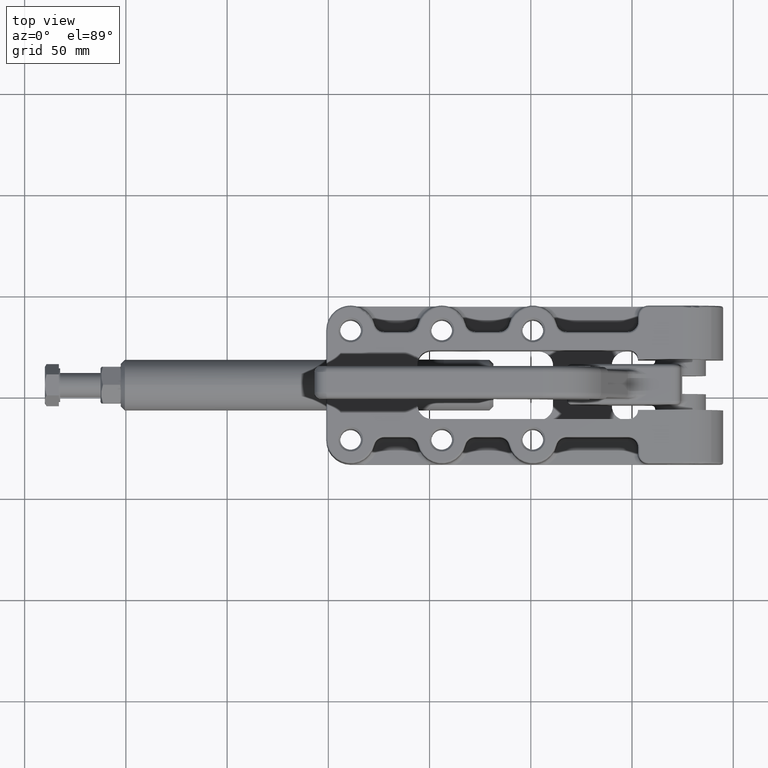
[diagram: clean part render]
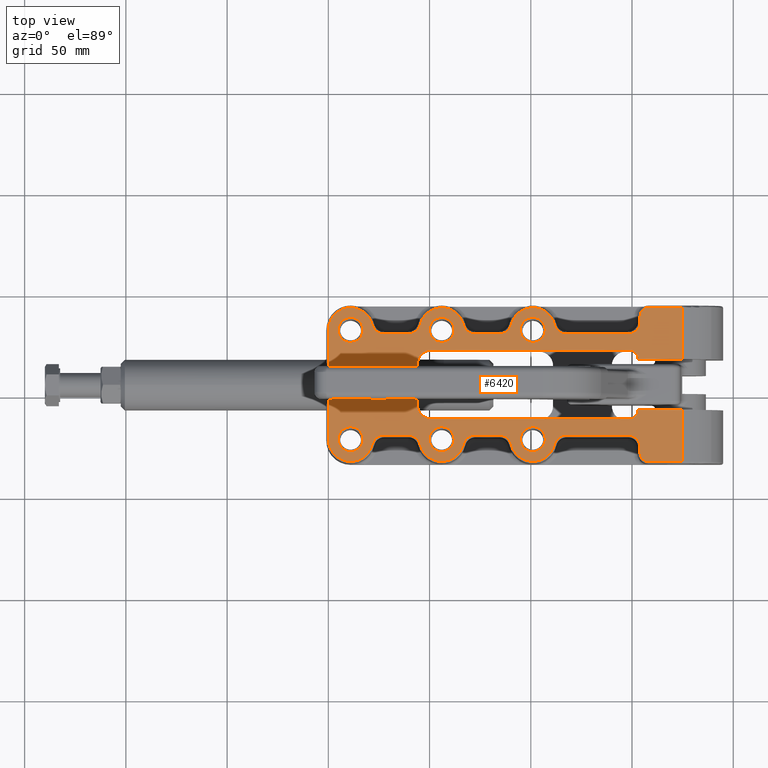
[diagram: same view with one face highlighted and labeled with its STEP entity id]
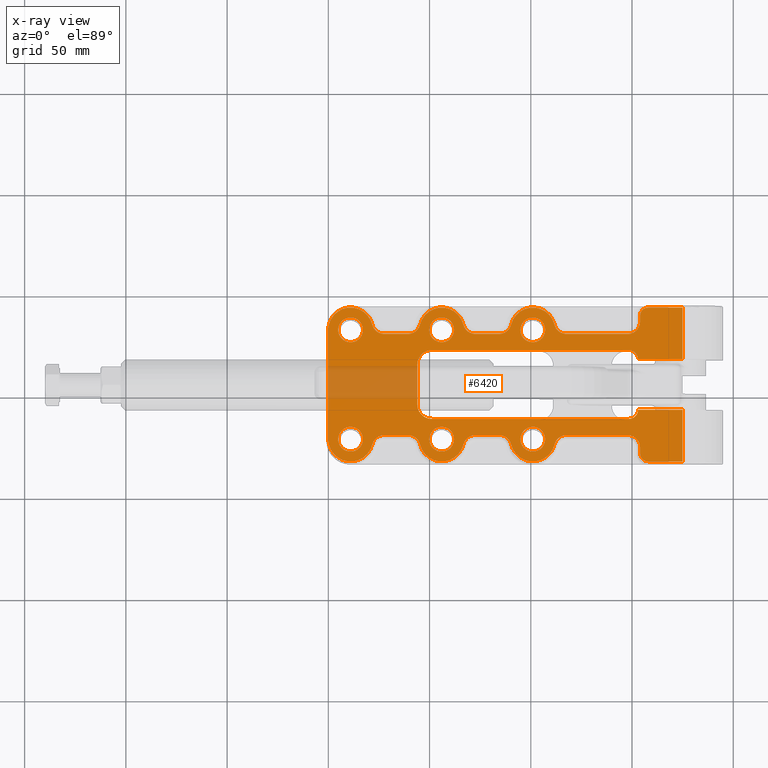
[diagram: x-ray of the same camera — body ghosted, the highlighted face saturated]
A machine part, top view. The second image highlights one B-rep face of the part: STEP entity #6420.
The next image is the same camera in x-ray: the body ghosted, the highlighted face saturated — about 12% of this face is hidden behind the body in this view.
In plain terms, the highlighted planar face has unit normal (0, 0, 1).
Its self-contained STEP definition (entity closure, byte-faithful):
#98=CARTESIAN_POINT('',(174.993680172835580,93.933960241156441,40.0));
#99=VERTEX_POINT('',#98);
#107=CARTESIAN_POINT('',(174.993680172835550,68.433960241156072,40.0));
#108=VERTEX_POINT('',#107);
#109=CARTESIAN_POINT('',(174.993680172835580,93.933960241156441,40.0));
#110=DIRECTION('',(0.0,-1.0,0.0));
#111=VECTOR('',#110,25.500000000000369);
#112=LINE('',#109,#111);
#113=EDGE_CURVE('',#99,#108,#112,.T.);
#564=CARTESIAN_POINT('',(17.143680172835591,82.933960241156171,40.0));
#565=VERTEX_POINT('',#564);
#579=CARTESIAN_POINT('',(4.843680172835589,82.933960241156171,40.0));
#580=VERTEX_POINT('',#579);
#587=CARTESIAN_POINT('',(10.993680172835589,82.933960241156171,40.0));
#588=DIRECTION('',(0.0,0.0,1.0));
#589=DIRECTION('',(1.0,0.0,0.0));
#590=AXIS2_PLACEMENT_3D('',#587,#588,#589);
#591=CIRCLE('',#590,6.150000000000001);
#592=EDGE_CURVE('',#580,#565,#591,.T.);
#640=CARTESIAN_POINT('',(62.150000000000006,82.933960241156171,40.0));
#641=VERTEX_POINT('',#640);
#655=CARTESIAN_POINT('',(49.850000000000009,82.933960241156171,40.0));
#656=VERTEX_POINT('',#655);
#663=CARTESIAN_POINT('',(56.000000000000007,82.933960241156171,40.0));
#664=DIRECTION('',(0.0,0.0,1.0));
#665=DIRECTION('',(1.0,0.0,0.0));
#666=AXIS2_PLACEMENT_3D('',#663,#664,#665);
#667=CIRCLE('',#666,6.149999999999997);
#668=EDGE_CURVE('',#656,#641,#667,.T.);
#716=CARTESIAN_POINT('',(107.150000000000010,82.933960241156171,40.0));
#717=VERTEX_POINT('',#716);
#731=CARTESIAN_POINT('',(94.850000000000009,82.933960241156171,40.0));
#732=VERTEX_POINT('',#731);
#739=CARTESIAN_POINT('',(101.000000000000010,82.933960241156171,40.0));
#740=DIRECTION('',(0.0,0.0,1.0));
#741=DIRECTION('',(1.0,0.0,0.0));
#742=AXIS2_PLACEMENT_3D('',#739,#740,#741);
#743=CIRCLE('',#742,6.149999999999997);
#744=EDGE_CURVE('',#732,#717,#743,.T.);
#756=CARTESIAN_POINT('',(107.150000000000010,28.933960241156029,40.0));
#757=VERTEX_POINT('',#756);
#773=CARTESIAN_POINT('',(94.850000000000009,28.933960241156029,40.0));
#774=VERTEX_POINT('',#773);
#781=CARTESIAN_POINT('',(101.000000000000010,28.933960241156029,40.0));
#782=DIRECTION('',(0.0,0.0,1.0));
#783=DIRECTION('',(1.0,0.0,0.0));
#784=AXIS2_PLACEMENT_3D('',#781,#782,#783);
#785=CIRCLE('',#784,6.149999999999997);
#786=EDGE_CURVE('',#774,#757,#785,.T.);
#798=CARTESIAN_POINT('',(62.150000000000006,28.933960241156029,40.0));
#799=VERTEX_POINT('',#798);
#815=CARTESIAN_POINT('',(49.850000000000009,28.933960241156029,40.0));
#816=VERTEX_POINT('',#815);
#823=CARTESIAN_POINT('',(56.000000000000007,28.933960241156029,40.0));
#824=DIRECTION('',(0.0,0.0,1.0));
#825=DIRECTION('',(1.0,0.0,0.0));
#826=AXIS2_PLACEMENT_3D('',#823,#824,#825);
#827=CIRCLE('',#826,6.149999999999997);
#828=EDGE_CURVE('',#816,#799,#827,.T.);
#840=CARTESIAN_POINT('',(17.143680172835630,28.933960241156029,40.0));
#841=VERTEX_POINT('',#840);
#857=CARTESIAN_POINT('',(4.843680172835626,28.933960241156029,40.0));
#858=VERTEX_POINT('',#857);
#865=CARTESIAN_POINT('',(10.993680172835628,28.933960241156029,40.0));
#866=DIRECTION('',(0.0,0.0,1.0));
#867=DIRECTION('',(1.0,0.0,0.0));
#868=AXIS2_PLACEMENT_3D('',#865,#866,#867);
#869=CIRCLE('',#868,6.150000000000001);
#870=EDGE_CURVE('',#858,#841,#869,.T.);
#1219=CARTESIAN_POINT('',(174.993680172835720,43.433960241154914,40.0));
#1220=VERTEX_POINT('',#1219);
#1228=CARTESIAN_POINT('',(174.993680172835720,17.933960241156054,40.0));
#1229=VERTEX_POINT('',#1228);
#1230=CARTESIAN_POINT('',(174.993680172835720,43.433960241154914,40.0));
#1231=DIRECTION('',(0.0,-1.0,0.0));
#1232=VECTOR('',#1231,25.499999999998860);
#1233=LINE('',#1230,#1232);
#1234=EDGE_CURVE('',#1220,#1229,#1233,.T.);
#1345=CARTESIAN_POINT('',(157.999649923578660,93.933960241156399,40.0));
#1346=VERTEX_POINT('',#1345);
#1354=CARTESIAN_POINT('',(157.999649923578660,93.933960241156399,40.0));
#1355=DIRECTION('',(1.0,0.0,0.0));
#1356=VECTOR('',#1355,16.994030249256923);
#1357=LINE('',#1354,#1356);
#1358=EDGE_CURVE('',#1346,#99,#1357,.T.);
#1602=CARTESIAN_POINT('',(157.999649923578660,17.933960241155894,40.0));
#1603=VERTEX_POINT('',#1602);
#1604=CARTESIAN_POINT('',(174.993680172835720,17.933960241156054,40.0));
#1605=DIRECTION('',(-1.0,0.0,0.0));
#1606=VECTOR('',#1605,16.994030249257065);
#1607=LINE('',#1604,#1606);
#1608=EDGE_CURVE('',#1229,#1603,#1607,.T.);
#1635=CARTESIAN_POINT('',(-0.006319827164361,28.933960241156033,40.0));
#1636=VERTEX_POINT('',#1635);
#1644=CARTESIAN_POINT('',(-0.006319827164370,82.933960241156157,40.0));
#1645=VERTEX_POINT('',#1644);
#1646=CARTESIAN_POINT('',(-0.006319827164361,28.933960241156033,40.0));
#1647=DIRECTION('',(0.0,1.0,0.0));
#1648=VECTOR('',#1647,54.000000000000128);
#1649=LINE('',#1646,#1648);
#1650=EDGE_CURVE('',#1636,#1645,#1649,.T.);
#5230=CARTESIAN_POINT('',(84.477638434485385,30.932514465138969,40.0));
#5231=VERTEX_POINT('',#5230);
#5239=CARTESIAN_POINT('',(72.522361565514643,30.932514465138986,40.0));
#5240=VERTEX_POINT('',#5239);
#5241=CARTESIAN_POINT('',(84.477638434485385,30.932514465138969,40.0));
#5242=DIRECTION('',(-1.0,0.0,0.0));
#5243=VECTOR('',#5242,11.955276868970742);
#5244=LINE('',#5241,#5243);
#5245=EDGE_CURVE('',#5231,#5240,#5244,.T.);
#5262=CARTESIAN_POINT('',(66.690939836509472,26.344789444909718,40.0));
#5263=VERTEX_POINT('',#5262);
#5274=CARTESIAN_POINT('',(72.522361565514629,24.932514465138986,40.0));
#5275=DIRECTION('',(0.0,0.0,1.0));
#5276=DIRECTION('',(-0.618312557168652,0.785932300931551,0.0));
#5277=AXIS2_PLACEMENT_3D('',#5274,#5275,#5276);
#5278=CIRCLE('',#5277,5.999999999999999);
#5279=EDGE_CURVE('',#5240,#5263,#5278,.T.);
#5289=CARTESIAN_POINT('',(90.309060163490528,26.344789444909672,40.0));
#5290=VERTEX_POINT('',#5289);
#5298=CARTESIAN_POINT('',(84.477638434485357,24.932514465138969,40.0));
#5299=DIRECTION('',(0.0,0.0,1.000000000000000));
#5300=DIRECTION('',(0.618312557168657,0.785932300931547,0.0));
#5301=AXIS2_PLACEMENT_3D('',#5298,#5299,#5300);
#5302=CIRCLE('',#5301,6.000000000000001);
#5303=EDGE_CURVE('',#5290,#5231,#5302,.T.);
#5316=CARTESIAN_POINT('',(45.309060163490543,26.344789444909559,40.0));
#5317=VERTEX_POINT('',#5316);
#5335=CARTESIAN_POINT('',(56.000000000000007,28.933960241156118,40.0));
#5336=DIRECTION('',(0.0,0.0,-1.0));
#5337=DIRECTION('',(0.0,-1.0,0.0));
#5338=AXIS2_PLACEMENT_3D('',#5335,#5336,#5337);
#5339=CIRCLE('',#5338,11.000000000000046);
#5340=EDGE_CURVE('',#5263,#5317,#5339,.T.);
#5350=CARTESIAN_POINT('',(111.690939836509460,26.344789444909559,40.0));
#5351=VERTEX_POINT('',#5350);
#5359=CARTESIAN_POINT('',(101.000000000000010,28.933960241155994,40.0));
#5360=DIRECTION('',(0.0,0.0,-1.0));
#5361=DIRECTION('',(0.0,-1.0,0.0));
#5362=AXIS2_PLACEMENT_3D('',#5359,#5360,#5361);
#5363=CIRCLE('',#5362,10.999999999999998);
#5364=EDGE_CURVE('',#5351,#5290,#5363,.T.);
#5376=CARTESIAN_POINT('',(39.477638434485186,30.932514465137420,40.0));
#5377=VERTEX_POINT('',#5376);
#5394=CARTESIAN_POINT('',(39.477638434485854,24.932514465137299,40.0));
#5395=DIRECTION('',(0.0,0.0,1.0));
#5396=DIRECTION('',(0.618312557168485,0.785932300931683,0.0));
#5397=AXIS2_PLACEMENT_3D('',#5394,#5395,#5396);
#5398=CIRCLE('',#5397,6.000000000000124);
#5399=EDGE_CURVE('',#5317,#5377,#5398,.T.);
#5410=CARTESIAN_POINT('',(117.522361565514840,30.932514465138880,40.0));
#5411=VERTEX_POINT('',#5410);
#5419=CARTESIAN_POINT('',(117.522361565514790,24.932514465138755,40.0));
#5420=DIRECTION('',(0.0,0.0,1.0));
#5421=DIRECTION('',(-0.618312557168649,0.785932300931554,0.0));
#5422=AXIS2_PLACEMENT_3D('',#5419,#5420,#5421);
#5423=CIRCLE('',#5422,6.000000000000124);
#5424=EDGE_CURVE('',#5411,#5351,#5423,.T.);
#5444=CARTESIAN_POINT('',(27.516041738350232,30.932514465138862,40.0));
#5445=VERTEX_POINT('',#5444);
#5446=CARTESIAN_POINT('',(39.477638434485186,30.932514465137420,40.0));
#5447=DIRECTION('',(-1.0,1.205861E-013,0.0));
#5448=VECTOR('',#5447,11.961596696134954);
#5449=LINE('',#5446,#5448);
#5450=EDGE_CURVE('',#5377,#5445,#5449,.T.);
#5468=CARTESIAN_POINT('',(147.999649923578400,30.932514465138965,40.0));
#5469=VERTEX_POINT('',#5468);
#5477=CARTESIAN_POINT('',(147.999649923578400,30.932514465138965,40.0));
#5478=DIRECTION('',(-1.0,0.0,0.0));
#5479=VECTOR('',#5478,30.477288358063561);
#5480=LINE('',#5477,#5479);
#5481=EDGE_CURVE('',#5469,#5411,#5480,.T.);
#5492=CARTESIAN_POINT('',(21.684620009344954,26.344789444909548,40.0));
#5493=VERTEX_POINT('',#5492);
#5512=CARTESIAN_POINT('',(27.516041738350275,24.932514465138933,40.0));
#5513=DIRECTION('',(0.0,0.0,1.0));
#5514=DIRECTION('',(-0.618312557168667,0.785932300931540,0.0));
#5515=AXIS2_PLACEMENT_3D('',#5512,#5513,#5514);
#5516=CIRCLE('',#5515,6.000000000000124);
#5517=EDGE_CURVE('',#5445,#5493,#5516,.T.);
#5528=CARTESIAN_POINT('',(153.999649923578540,24.932514465138741,40.0));
#5529=VERTEX_POINT('',#5528);
#5537=CARTESIAN_POINT('',(147.999649923578400,24.932514465138720,40.0));
#5538=DIRECTION('',(0.0,0.0,1.000000000000000));
#5539=DIRECTION('',(0.707106781186544,0.707106781186551,0.0));
#5540=AXIS2_PLACEMENT_3D('',#5537,#5538,#5539);
#5541=CIRCLE('',#5540,6.000000000000124);
#5542=EDGE_CURVE('',#5529,#5469,#5541,.T.);
#5579=CARTESIAN_POINT('',(10.993680172835628,28.933960241156029,40.0));
#5580=DIRECTION('',(0.0,0.0,-1.000000000000000));
#5581=DIRECTION('',(-0.118525057475502,-0.992951061608994,0.0));
#5582=AXIS2_PLACEMENT_3D('',#5579,#5580,#5581);
#5583=CIRCLE('',#5582,10.999999999999986);
#5584=EDGE_CURVE('',#5493,#1636,#5583,.T.);
#5595=CARTESIAN_POINT('',(153.999649923578540,21.933960241156051,40.0));
#5596=VERTEX_POINT('',#5595);
#5604=CARTESIAN_POINT('',(153.999649923578540,21.933960241156051,40.0));
#5605=DIRECTION('',(0.0,1.0,0.0));
#5606=VECTOR('',#5605,2.998554223982691);
#5607=LINE('',#5604,#5606);
#5608=EDGE_CURVE('',#5596,#5529,#5607,.T.);
#5652=CARTESIAN_POINT('',(157.999649923578660,21.933960241156019,40.0));
#5653=DIRECTION('',(0.0,0.0,-1.000000000000000));
#5654=DIRECTION('',(-0.707106781186550,-0.707106781186545,0.0));
#5655=AXIS2_PLACEMENT_3D('',#5652,#5653,#5654);
#5656=CIRCLE('',#5655,4.000000000000124);
#5657=EDGE_CURVE('',#1603,#5596,#5656,.T.);
#5676=CARTESIAN_POINT('',(21.684620009345011,85.523131037402720,40.0));
#5677=VERTEX_POINT('',#5676);
#5689=CARTESIAN_POINT('',(10.993680172835589,82.933960241156171,40.0));
#5690=DIRECTION('',(0.0,0.0,-1.0));
#5691=DIRECTION('',(-0.118525057475506,0.992951061608994,0.0));
#5692=AXIS2_PLACEMENT_3D('',#5689,#5690,#5691);
#5693=CIRCLE('',#5692,11.0);
#5694=EDGE_CURVE('',#1645,#5677,#5693,.T.);
#5729=CARTESIAN_POINT('',(27.516041738350225,80.935406017173236,40.0));
#5730=VERTEX_POINT('',#5729);
#5741=CARTESIAN_POINT('',(27.516041738350275,86.935406017173364,40.0));
#5742=DIRECTION('',(0.0,0.0,1.000000000000000));
#5743=DIRECTION('',(-0.618312557168666,-0.785932300931540,0.0));
#5744=AXIS2_PLACEMENT_3D('',#5741,#5742,#5743);
#5745=CIRCLE('',#5744,6.000000000000122);
#5746=EDGE_CURVE('',#5677,#5730,#5745,.T.);
#5793=CARTESIAN_POINT('',(39.477638434485300,80.935406017173491,40.0));
#5794=VERTEX_POINT('',#5793);
#5795=CARTESIAN_POINT('',(27.516041738350225,80.935406017173236,40.0));
#5796=DIRECTION('',(1.0,0.0,0.0));
#5797=VECTOR('',#5796,11.961596696135075);
#5798=LINE('',#5795,#5797);
#5799=EDGE_CURVE('',#5730,#5794,#5798,.T.);
#5833=CARTESIAN_POINT('',(45.309060163490699,85.523131037402393,40.0));
#5834=VERTEX_POINT('',#5833);
#5853=CARTESIAN_POINT('',(39.477638434485854,86.935406017174998,40.0));
#5854=DIRECTION('',(0.0,0.0,1.0));
#5855=DIRECTION('',(0.618312557168485,-0.785932300931683,0.0));
#5856=AXIS2_PLACEMENT_3D('',#5853,#5854,#5855);
#5857=CIRCLE('',#5856,6.000000000000124);
#5858=EDGE_CURVE('',#5794,#5834,#5857,.T.);
#5868=CARTESIAN_POINT('',(66.690939836509500,85.523131037402578,40.0));
#5869=VERTEX_POINT('',#5868);
#5886=CARTESIAN_POINT('',(56.000000000000007,82.933960241156171,40.0));
#5887=DIRECTION('',(0.0,0.0,-1.0));
#5888=DIRECTION('',(0.0,1.0,0.0));
#5889=AXIS2_PLACEMENT_3D('',#5886,#5887,#5888);
#5890=CIRCLE('',#5889,11.000000000000046);
#5891=EDGE_CURVE('',#5834,#5869,#5890,.T.);
#5901=CARTESIAN_POINT('',(72.522361565514643,80.935406017173307,40.0));
#5902=VERTEX_POINT('',#5901);
#5919=CARTESIAN_POINT('',(72.522361565514629,86.935406017173307,40.0));
#5920=DIRECTION('',(0.0,0.0,1.000000000000000));
#5921=DIRECTION('',(-0.618312557168653,-0.785932300931550,0.0));
#5922=AXIS2_PLACEMENT_3D('',#5919,#5920,#5921);
#5923=CIRCLE('',#5922,6.000000000000003);
#5924=EDGE_CURVE('',#5869,#5902,#5923,.T.);
#5936=CARTESIAN_POINT('',(84.477638434485385,80.935406017173335,40.0));
#5937=VERTEX_POINT('',#5936);
#5938=CARTESIAN_POINT('',(72.522361565514643,80.935406017173307,40.0));
#5939=DIRECTION('',(1.0,0.0,0.0));
#5940=VECTOR('',#5939,11.955276868970742);
#5941=LINE('',#5938,#5940);
#5942=EDGE_CURVE('',#5902,#5937,#5941,.T.);
#5959=CARTESIAN_POINT('',(90.309060163490528,85.523131037402607,40.0));
#5960=VERTEX_POINT('',#5959);
#5977=CARTESIAN_POINT('',(84.477638434485357,86.935406017173321,40.0));
#5978=DIRECTION('',(0.0,0.0,1.000000000000000));
#5979=DIRECTION('',(0.618312557168658,-0.785932300931546,0.0));
#5980=AXIS2_PLACEMENT_3D('',#5977,#5978,#5979);
#5981=CIRCLE('',#5980,5.999999999999998);
#5982=EDGE_CURVE('',#5937,#5960,#5981,.T.);
#5992=CARTESIAN_POINT('',(111.690939836509560,85.523131037402720,40.0));
#5993=VERTEX_POINT('',#5992);
#6003=CARTESIAN_POINT('',(101.000000000000010,82.933960241156171,40.0));
#6004=DIRECTION('',(0.0,0.0,-1.0));
#6005=DIRECTION('',(0.0,1.0,0.0));
#6006=AXIS2_PLACEMENT_3D('',#6003,#6004,#6005);
#6007=CIRCLE('',#6006,11.000000000000119);
#6008=EDGE_CURVE('',#5960,#5993,#6007,.T.);
#6018=CARTESIAN_POINT('',(117.522361565514870,80.935406017173420,40.0));
#6019=VERTEX_POINT('',#6018);
#6030=CARTESIAN_POINT('',(117.522361565514790,86.935406017173534,40.0));
#6031=DIRECTION('',(0.0,0.0,1.0));
#6032=DIRECTION('',(-0.618312557168643,-0.785932300931559,0.0));
#6033=AXIS2_PLACEMENT_3D('',#6030,#6031,#6032);
#6034=CIRCLE('',#6033,6.000000000000124);
#6035=EDGE_CURVE('',#5993,#6019,#6034,.T.);
#6047=CARTESIAN_POINT('',(147.999649923578400,80.935406017173449,40.0));
#6048=VERTEX_POINT('',#6047);
#6049=CARTESIAN_POINT('',(117.522361565514870,80.935406017173420,40.0));
#6050=DIRECTION('',(1.0,0.0,0.0));
#6051=VECTOR('',#6050,30.477288358063532);
#6052=LINE('',#6049,#6051);
#6053=EDGE_CURVE('',#6019,#6048,#6052,.T.);
#6070=CARTESIAN_POINT('',(153.999649923578540,86.935406017173577,40.0));
#6071=VERTEX_POINT('',#6070);
#6083=CARTESIAN_POINT('',(147.999649923578400,86.935406017173577,40.0));
#6084=DIRECTION('',(0.0,0.0,1.000000000000000));
#6085=DIRECTION('',(0.707106781186548,-0.707106781186548,0.0));
#6086=AXIS2_PLACEMENT_3D('',#6083,#6084,#6085);
#6087=CIRCLE('',#6086,6.000000000000124);
#6088=EDGE_CURVE('',#6048,#6071,#6087,.T.);
#6100=CARTESIAN_POINT('',(153.999649923578540,89.933960241156271,40.0));
#6101=VERTEX_POINT('',#6100);
#6102=CARTESIAN_POINT('',(153.999649923578540,86.935406017173577,40.0));
#6103=DIRECTION('',(0.0,1.0,0.0));
#6104=VECTOR('',#6103,2.998554223982694);
#6105=LINE('',#6102,#6104);
#6106=EDGE_CURVE('',#6071,#6101,#6105,.T.);
#6134=CARTESIAN_POINT('',(157.999649923578660,89.933960241156271,40.0));
#6135=DIRECTION('',(0.0,0.0,-1.000000000000000));
#6136=DIRECTION('',(-0.707106781186549,0.707106781186546,0.0));
#6137=AXIS2_PLACEMENT_3D('',#6134,#6135,#6136);
#6138=CIRCLE('',#6137,4.000000000000124);
#6139=EDGE_CURVE('',#6101,#1346,#6138,.T.);
#6246=CARTESIAN_POINT('',(125.493680172835000,55.933960241155759,40.0));
#6247=DIRECTION('',(0.0,0.0,1.0));
#6248=DIRECTION('',(1.0,0.0,0.0));
#6249=AXIS2_PLACEMENT_3D('',#6246,#6247,#6248);
#6250=PLANE('',#6249);
#6251=ORIENTED_EDGE('',*,*,#1358,.F.);
#6252=ORIENTED_EDGE('',*,*,#6139,.F.);
#6253=ORIENTED_EDGE('',*,*,#6106,.F.);
#6254=ORIENTED_EDGE('',*,*,#6088,.F.);
#6255=ORIENTED_EDGE('',*,*,#6053,.F.);
#6256=ORIENTED_EDGE('',*,*,#6035,.F.);
#6257=ORIENTED_EDGE('',*,*,#6008,.F.);
#6258=ORIENTED_EDGE('',*,*,#5982,.F.);
#6259=ORIENTED_EDGE('',*,*,#5942,.F.);
#6260=ORIENTED_EDGE('',*,*,#5924,.F.);
#6261=ORIENTED_EDGE('',*,*,#5891,.F.);
#6262=ORIENTED_EDGE('',*,*,#5858,.F.);
#6263=ORIENTED_EDGE('',*,*,#5799,.F.);
#6264=ORIENTED_EDGE('',*,*,#5746,.F.);
#6265=ORIENTED_EDGE('',*,*,#5694,.F.);
#6266=ORIENTED_EDGE('',*,*,#1650,.F.);
#6267=ORIENTED_EDGE('',*,*,#5584,.F.);
#6268=ORIENTED_EDGE('',*,*,#5517,.F.);
#6269=ORIENTED_EDGE('',*,*,#5450,.F.);
#6270=ORIENTED_EDGE('',*,*,#5399,.F.);
#6271=ORIENTED_EDGE('',*,*,#5340,.F.);
#6272=ORIENTED_EDGE('',*,*,#5279,.F.);
#6273=ORIENTED_EDGE('',*,*,#5245,.F.);
#6274=ORIENTED_EDGE('',*,*,#5303,.F.);
#6275=ORIENTED_EDGE('',*,*,#5364,.F.);
#6276=ORIENTED_EDGE('',*,*,#5424,.F.);
#6277=ORIENTED_EDGE('',*,*,#5481,.F.);
#6278=ORIENTED_EDGE('',*,*,#5542,.F.);
#6279=ORIENTED_EDGE('',*,*,#5608,.F.);
#6280=ORIENTED_EDGE('',*,*,#5657,.F.);
#6281=ORIENTED_EDGE('',*,*,#1608,.F.);
#6282=ORIENTED_EDGE('',*,*,#1234,.F.);
#6283=CARTESIAN_POINT('',(152.993680172835300,43.433960241154914,40.0));
#6284=VERTEX_POINT('',#6283);
#6285=CARTESIAN_POINT('',(152.993680172835300,43.433960241154914,40.0));
#6286=DIRECTION('',(1.0,0.0,0.0));
#6287=VECTOR('',#6286,22.000000000000426);
#6288=LINE('',#6285,#6287);
#6289=EDGE_CURVE('',#6284,#1220,#6288,.T.);
#6290=ORIENTED_EDGE('',*,*,#6289,.F.);
#6291=CARTESIAN_POINT('',(148.493680172835380,38.933960241156136,40.0));
#6292=VERTEX_POINT('',#6291);
#6293=CARTESIAN_POINT('',(148.493680172835500,43.433960241155916,40.0));
#6294=DIRECTION('',(0.0,0.0,1.0));
#6295=DIRECTION('',(0.0,1.0,0.0));
#6296=AXIS2_PLACEMENT_3D('',#6293,#6294,#6295);
#6297=CIRCLE('',#6296,4.499999999999829);
#6298=EDGE_CURVE('',#6292,#6284,#6297,.T.);
#6299=ORIENTED_EDGE('',*,*,#6298,.F.);
#6300=CARTESIAN_POINT('',(50.993680172835390,38.933960241156143,40.0));
#6301=VERTEX_POINT('',#6300);
#6302=CARTESIAN_POINT('',(50.993680172835390,38.933960241156143,40.0));
#6303=DIRECTION('',(1.0,0.0,0.0));
#6304=VECTOR('',#6303,97.500000000000000);
#6305=LINE('',#6302,#6304);
#6306=EDGE_CURVE('',#6301,#6292,#6305,.T.);
#6307=ORIENTED_EDGE('',*,*,#6306,.F.);
#6308=CARTESIAN_POINT('',(43.993680172835440,45.933960241156086,40.0));
#6309=VERTEX_POINT('',#6308);
#6310=CARTESIAN_POINT('',(50.993680172835390,45.933960241156086,40.0));
#6311=DIRECTION('',(0.0,0.0,1.0));
#6312=DIRECTION('',(1.0,0.0,0.0));
#6313=AXIS2_PLACEMENT_3D('',#6310,#6311,#6312);
#6314=CIRCLE('',#6313,6.999999999999950);
#6315=EDGE_CURVE('',#6309,#6301,#6314,.T.);
#6316=ORIENTED_EDGE('',*,*,#6315,.F.);
#6317=CARTESIAN_POINT('',(43.993680172835440,65.933960241156072,40.0));
#6318=VERTEX_POINT('',#6317);
#6319=CARTESIAN_POINT('',(43.993680172835440,65.933960241156072,40.0));
#6320=DIRECTION('',(0.0,-1.0,0.0));
#6321=VECTOR('',#6320,19.999999999999986);
#6322=LINE('',#6319,#6321);
#6323=EDGE_CURVE('',#6318,#6309,#6322,.T.);
#6324=ORIENTED_EDGE('',*,*,#6323,.F.);
#6325=CARTESIAN_POINT('',(50.993680172835390,72.933960241156015,40.0));
#6326=VERTEX_POINT('',#6325);
#6327=CARTESIAN_POINT('',(50.993680172835390,65.933960241156072,40.0));
#6328=DIRECTION('',(0.0,0.0,1.0));
#6329=DIRECTION('',(0.0,-1.0,0.0));
#6330=AXIS2_PLACEMENT_3D('',#6327,#6328,#6329);
#6331=CIRCLE('',#6330,6.999999999999950);
#6332=EDGE_CURVE('',#6326,#6318,#6331,.T.);
#6333=ORIENTED_EDGE('',*,*,#6332,.F.);
#6334=CARTESIAN_POINT('',(148.493680172835470,72.933960241156029,40.0));
#6335=VERTEX_POINT('',#6334);
#6336=CARTESIAN_POINT('',(148.493680172835470,72.933960241156029,40.0));
#6337=DIRECTION('',(-1.0,0.0,0.0));
#6338=VECTOR('',#6337,97.500000000000085);
#6339=LINE('',#6336,#6338);
#6340=EDGE_CURVE('',#6335,#6326,#6339,.T.);
#6341=ORIENTED_EDGE('',*,*,#6340,.F.);
#6342=CARTESIAN_POINT('',(152.993680172835410,68.433960241156072,40.0));
#6343=VERTEX_POINT('',#6342);
#6344=CARTESIAN_POINT('',(148.493680172835610,68.433960241156043,40.0));
#6345=DIRECTION('',(0.0,0.0,1.0));
#6346=DIRECTION('',(-1.0,0.0,0.0));
#6347=AXIS2_PLACEMENT_3D('',#6344,#6345,#6346);
#6348=CIRCLE('',#6347,4.499999999999829);
#6349=EDGE_CURVE('',#6343,#6335,#6348,.T.);
#6350=ORIENTED_EDGE('',*,*,#6349,.F.);
#6351=CARTESIAN_POINT('',(174.993680172835550,68.433960241156072,40.0));
#6352=DIRECTION('',(-1.0,0.0,0.0));
#6353=VECTOR('',#6352,22.000000000000142);
#6354=LINE('',#6351,#6353);
#6355=EDGE_CURVE('',#108,#6343,#6354,.T.);
#6356=ORIENTED_EDGE('',*,*,#6355,.F.);
#6357=ORIENTED_EDGE('',*,*,#113,.F.);
#6358=EDGE_LOOP('',(#6251,#6252,#6253,#6254,#6255,#6256,#6257,#6258,#6259,#6260,#6261,#6262,#6263,#6264,#6265,#6266,#6267,#6268,#6269,#6270,#6271,#6272,#6273,#6274,#6275,#6276,#6277,#6278,#6279,#6280,#6281,#6282,#6290,#6299,#6307,#6316,#6324,#6333,#6341,#6350,#6356,#6357));
#6359=FACE_OUTER_BOUND('',#6358,.T.);
#6360=ORIENTED_EDGE('',*,*,#870,.F.);
#6361=CARTESIAN_POINT('',(10.993680172835628,28.933960241156029,40.0));
#6362=DIRECTION('',(0.0,0.0,1.0));
#6363=DIRECTION('',(1.0,0.0,0.0));
#6364=AXIS2_PLACEMENT_3D('',#6361,#6362,#6363);
#6365=CIRCLE('',#6364,6.150000000000001);
#6366=EDGE_CURVE('',#841,#858,#6365,.T.);
#6367=ORIENTED_EDGE('',*,*,#6366,.F.);
#6368=EDGE_LOOP('',(#6360,#6367));
#6369=FACE_BOUND('',#6368,.T.);
#6370=ORIENTED_EDGE('',*,*,#786,.F.);
#6371=CARTESIAN_POINT('',(101.000000000000010,28.933960241156029,40.0));
#6372=DIRECTION('',(0.0,0.0,1.0));
#6373=DIRECTION('',(1.0,0.0,0.0));
#6374=AXIS2_PLACEMENT_3D('',#6371,#6372,#6373);
#6375=CIRCLE('',#6374,6.149999999999997);
#6376=EDGE_CURVE('',#757,#774,#6375,.T.);
#6377=ORIENTED_EDGE('',*,*,#6376,.F.);
#6378=EDGE_LOOP('',(#6370,#6377));
#6379=FACE_BOUND('',#6378,.T.);
#6380=ORIENTED_EDGE('',*,*,#668,.F.);
#6381=CARTESIAN_POINT('',(56.000000000000007,82.933960241156171,40.0));
#6382=DIRECTION('',(0.0,0.0,1.0));
#6383=DIRECTION('',(1.0,0.0,0.0));
#6384=AXIS2_PLACEMENT_3D('',#6381,#6382,#6383);
#6385=CIRCLE('',#6384,6.149999999999997);
#6386=EDGE_CURVE('',#641,#656,#6385,.T.);
#6387=ORIENTED_EDGE('',*,*,#6386,.F.);
#6388=EDGE_LOOP('',(#6380,#6387));
#6389=FACE_BOUND('',#6388,.T.);
#6390=ORIENTED_EDGE('',*,*,#592,.F.);
#6391=CARTESIAN_POINT('',(10.993680172835589,82.933960241156171,40.0));
#6392=DIRECTION('',(0.0,0.0,1.0));
#6393=DIRECTION('',(1.0,0.0,0.0));
#6394=AXIS2_PLACEMENT_3D('',#6391,#6392,#6393);
#6395=CIRCLE('',#6394,6.150000000000001);
#6396=EDGE_CURVE('',#565,#580,#6395,.T.);
#6397=ORIENTED_EDGE('',*,*,#6396,.F.);
#6398=EDGE_LOOP('',(#6390,#6397));
#6399=FACE_BOUND('',#6398,.T.);
#6400=ORIENTED_EDGE('',*,*,#744,.F.);
#6401=CARTESIAN_POINT('',(101.000000000000010,82.933960241156171,40.0));
#6402=DIRECTION('',(0.0,0.0,1.0));
#6403=DIRECTION('',(1.0,0.0,0.0));
#6404=AXIS2_PLACEMENT_3D('',#6401,#6402,#6403);
#6405=CIRCLE('',#6404,6.149999999999997);
#6406=EDGE_CURVE('',#717,#732,#6405,.T.);
#6407=ORIENTED_EDGE('',*,*,#6406,.F.);
#6408=EDGE_LOOP('',(#6400,#6407));
#6409=FACE_BOUND('',#6408,.T.);
#6410=ORIENTED_EDGE('',*,*,#828,.F.);
#6411=CARTESIAN_POINT('',(56.000000000000007,28.933960241156029,40.0));
#6412=DIRECTION('',(0.0,0.0,1.0));
#6413=DIRECTION('',(1.0,0.0,0.0));
#6414=AXIS2_PLACEMENT_3D('',#6411,#6412,#6413);
#6415=CIRCLE('',#6414,6.149999999999997);
#6416=EDGE_CURVE('',#799,#816,#6415,.T.);
#6417=ORIENTED_EDGE('',*,*,#6416,.F.);
#6418=EDGE_LOOP('',(#6410,#6417));
#6419=FACE_BOUND('',#6418,.T.);
#6420=ADVANCED_FACE('',(#6359,#6369,#6379,#6389,#6399,#6409,#6419),#6250,.T.);